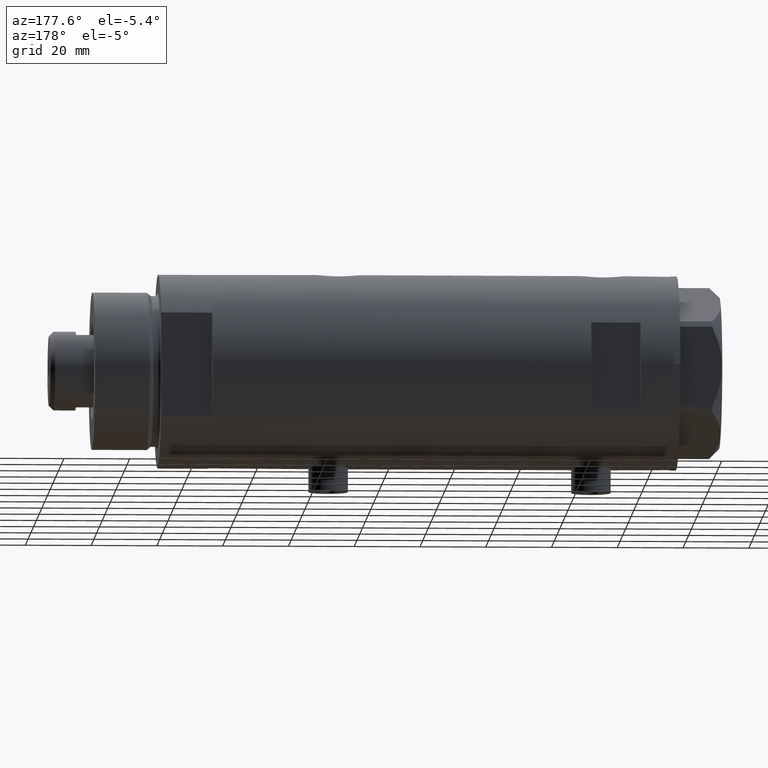
[diagram: clean part render]
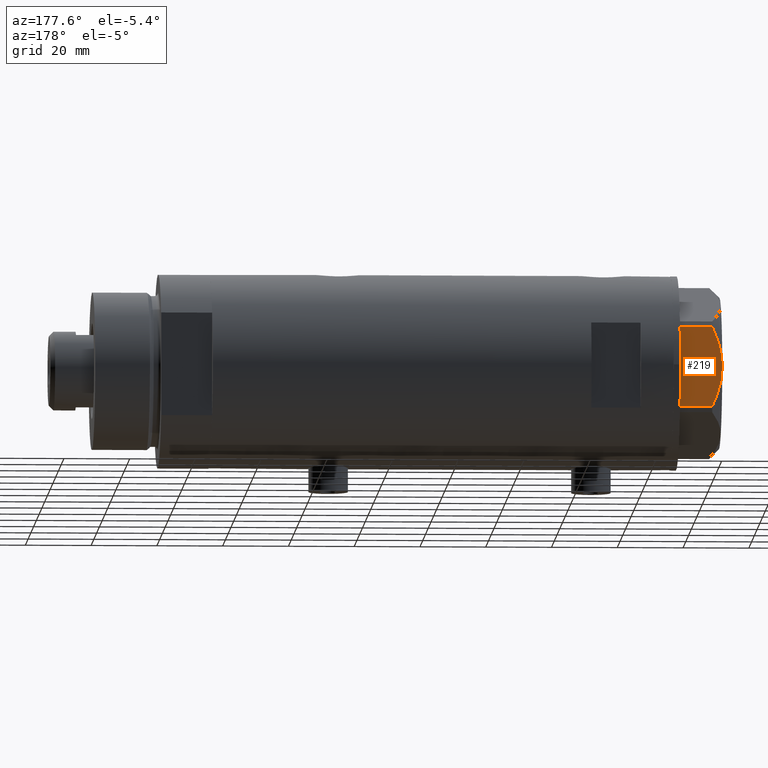
[diagram: same view with one face highlighted and labeled with its STEP entity id]
A machine part, auxiliary view. The second image highlights one B-rep face of the part: STEP entity #219.
In plain terms, the highlighted planar face has unit normal (0, -1, 0).
Its self-contained STEP definition (entity closure, byte-faithful):
#14 = EDGE_LOOP ( 'NONE', ( #54, #33, #4267, #2396, #4464 ) ) ;
#33 = ORIENTED_EDGE ( 'NONE', *, *, #1765, .T. ) ;
#54 = ORIENTED_EDGE ( 'NONE', *, *, #3925, .F. ) ;
#63 = CARTESIAN_POINT ( 'NONE',  ( 23.00000000000004263, -8.748091966971225375, 11.39681897828457124 ) ) ;
#68 = CARTESIAN_POINT ( 'NONE',  ( 23.00000000000008527, -13.27905619136115867, 13.00000000000000000 ) ) ;
#160 = CARTESIAN_POINT ( 'NONE',  ( 23.00000000000003197, -8.246028007352199651, 11.57113180864690705 ) ) ;
#219 = ADVANCED_FACE ( 'NONE', ( #837 ), #2360, .F. ) ;
#359 = VECTOR ( 'NONE', #3406, 1000.000000000000000 ) ;
#410 = AXIS2_PLACEMENT_3D ( 'NONE', #68, #4204, #503 ) ;
#470 = DIRECTION ( 'NONE',  ( 0.000000000000000000, 0.000000000000000000, -1.000000000000000000 ) ) ;
#472 = CARTESIAN_POINT ( 'NONE',  ( 22.99999999999982236, 12.15905619136166571, 0.000000000000000000 ) ) ;
#503 = DIRECTION ( 'NONE',  ( 1.032024811306395780E-14, -1.000000000000000000, 0.000000000000000000 ) ) ;
#525 = CARTESIAN_POINT ( 'NONE',  ( 23.00000000000001421, -6.734330413511261604, 12.03938974125266448 ) ) ;
#622 = CARTESIAN_POINT ( 'NONE',  ( 22.99999999999993960, 1.063773509315898647, 12.98143808360683060 ) ) ;
#671 = CARTESIAN_POINT ( 'NONE',  ( 22.99999999999984368, 11.20155944044835472, 10.42110268263274264 ) ) ;
#703 = B_SPLINE_CURVE_WITH_KNOTS ( 'NONE', 3,
 ( #4537, #1607, #1923, #63, #160, #1637, #525, #2332, #1946, #1227 ),
 .UNSPECIFIED., .F., .F.,
 ( 4, 2, 2, 2, 4 ),
 ( 0.03516523594057416324, 0.03831677594541234994, 0.03989254594783143981, 0.04146831595025052969, 0.04777139595992689614 ),
 .UNSPECIFIED. ) ;
#766 = LINE ( 'NONE', #3674, #4193 ) ;
#837 = FACE_OUTER_BOUND ( 'NONE', #14, .T. ) ;
#841 = DIRECTION ( 'NONE',  ( 0.000000000000000000, 0.000000000000000000, 1.000000000000000000 ) ) ;
#1028 = VERTEX_POINT ( 'NONE', #4054 ) ;
#1227 = CARTESIAN_POINT ( 'NONE',  ( 22.99999999999995026, 2.373657066004705010E-13, 13.00000000000000000 ) ) ;
#1256 = VECTOR ( 'NONE', #470, 1000.000000000000000 ) ;
#1373 = CARTESIAN_POINT ( 'NONE',  ( 22.99999999999992539, 2.119709279062088836, 12.90853521217320043 ) ) ;
#1607 = CARTESIAN_POINT ( 'NONE',  ( 23.00000000000006750, -11.20825071633899483, 10.42817330637845608 ) ) ;
#1637 = CARTESIAN_POINT ( 'NONE',  ( 23.00000000000002132, -7.239756182922042704, 11.89218606342284978 ) ) ;
#1684 = VERTEX_POINT ( 'NONE', #3490 ) ;
#1703 = CARTESIAN_POINT ( 'NONE',  ( 22.99999999999995026, 2.373657066004705010E-13, 13.00000000000000000 ) ) ;
#1758 = CARTESIAN_POINT ( 'NONE',  ( 22.99999999999986500, 8.252113629125442884, 11.58164206268022056 ) ) ;
#1765 = EDGE_CURVE ( 'NONE', #2484, #1684, #1941, .T. ) ;
#1874 = EDGE_CURVE ( 'NONE', #2345, #2214, #766, .T. ) ;
#1923 = CARTESIAN_POINT ( 'NONE',  ( 23.00000000000005684, -10.23890159976106240, 10.84081242829091529 ) ) ;
#1933 = CARTESIAN_POINT ( 'NONE',  ( 23.00000000000008527, -13.27905619136115867, 0.000000000000000000 ) ) ;
#1941 = LINE ( 'NONE', #2306, #1256 ) ;
#1946 = CARTESIAN_POINT ( 'NONE',  ( 22.99999999999996447, -2.122900714017910584, 13.00000000000008882 ) ) ;
#2122 = CARTESIAN_POINT ( 'NONE',  ( 22.99999999999990052, 5.228918809624289565, 12.43333703384985256 ) ) ;
#2214 = VERTEX_POINT ( 'NONE', #4729 ) ;
#2297 = LINE ( 'NONE', #1933, #359 ) ;
#2306 = CARTESIAN_POINT ( 'NONE',  ( 23.00000000000007461, -12.15905619136117721, 13.00000000000000000 ) ) ;
#2332 = CARTESIAN_POINT ( 'NONE',  ( 22.99999999999999289, -4.194757081058820170, 12.70300035152520479 ) ) ;
#2345 = VERTEX_POINT ( 'NONE', #472 ) ;
#2360 = PLANE ( 'NONE',  #410 ) ;
#2396 = ORIENTED_EDGE ( 'NONE', *, *, #1874, .T. ) ;
#2484 = VERTEX_POINT ( 'NONE', #3332 ) ;
#2506 = CARTESIAN_POINT ( 'NONE',  ( 22.99999999999985434, 9.734726261263476843, 11.02892470009566139 ) ) ;
#2528 = CARTESIAN_POINT ( 'NONE',  ( 22.99999999999982947, 11.68282849742354301, 10.20637235269540888 ) ) ;
#2865 = CARTESIAN_POINT ( 'NONE',  ( 22.99999999999994671, 0.5295934231899315225, 13.00000000000009770 ) ) ;
#2903 = EDGE_CURVE ( 'NONE', #1684, #2345, #2297, .T. ) ;
#2911 = CARTESIAN_POINT ( 'NONE',  ( 22.99999999999990763, 4.203926054642130872, 12.64168122312251263 ) ) ;
#3235 = EDGE_CURVE ( 'NONE', #1028, #2214, #3394, .T. ) ;
#3332 = CARTESIAN_POINT ( 'NONE',  ( 23.00000000000007461, -12.15905619136117544, 9.983800287807614637 ) ) ;
#3394 = B_SPLINE_CURVE_WITH_KNOTS ( 'NONE', 3,
 ( #1703, #2865, #622, #1373, #4692, #2911, #2122, #4392, #1758, #2506, #3987, #671, #2528, #4460 ),
 .UNSPECIFIED., .F., .F.,
 ( 4, 2, 2, 2, 2, 2, 4 ),
 ( 0.04777139595992689614, 0.04934380568070229761, 0.05091621540147769215, 0.05406103484302849510, 0.05720585428457929111, 0.05877826400535468565, 0.06035067372613008713 ),
 .UNSPECIFIED. ) ;
#3406 = DIRECTION ( 'NONE',  ( -1.032024811306395780E-14, 1.000000000000000000, 0.000000000000000000 ) ) ;
#3490 = CARTESIAN_POINT ( 'NONE',  ( 23.00000000000007461, -12.15905619136117721, 0.000000000000000000 ) ) ;
#3674 = CARTESIAN_POINT ( 'NONE',  ( 22.99999999999982236, 12.15905619136166571, 13.00000000000000000 ) ) ;
#3925 = EDGE_CURVE ( 'NONE', #2484, #1028, #703, .T. ) ;
#3987 = CARTESIAN_POINT ( 'NONE',  ( 22.99999999999984723, 10.22738952213813590, 10.83247031367476687 ) ) ;
#4054 = CARTESIAN_POINT ( 'NONE',  ( 22.99999999999995026, 2.373657066004705010E-13, 13.00000000000000000 ) ) ;
#4193 = VECTOR ( 'NONE', #841, 1000.000000000000000 ) ;
#4204 = DIRECTION ( 'NONE',  ( -1.000000000000000000, -1.032024811306395780E-14, 0.000000000000000000 ) ) ;
#4267 = ORIENTED_EDGE ( 'NONE', *, *, #2903, .T. ) ;
#4392 = CARTESIAN_POINT ( 'NONE',  ( 22.99999999999987210, 7.253003311474555126, 11.90327681034763430 ) ) ;
#4460 = CARTESIAN_POINT ( 'NONE',  ( 22.99999999999982236, 12.15905619136166038, 9.983800287807609308 ) ) ;
#4464 = ORIENTED_EDGE ( 'NONE', *, *, #3235, .F. ) ;
#4537 = CARTESIAN_POINT ( 'NONE',  ( 23.00000000000007461, -12.15905619136117544, 9.983800287807614637 ) ) ;
#4692 = CARTESIAN_POINT ( 'NONE',  ( 22.99999999999992184, 2.643615312305319875, 12.85430456063626714 ) ) ;
#4729 = CARTESIAN_POINT ( 'NONE',  ( 22.99999999999982236, 12.15905619136166038, 9.983800287807609308 ) ) ;